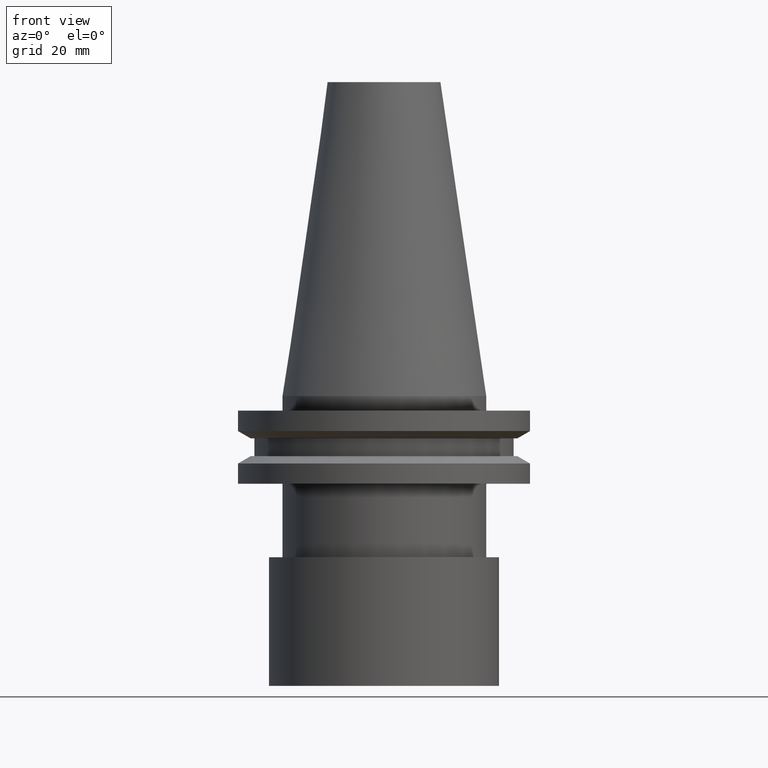
[diagram: clean part render]
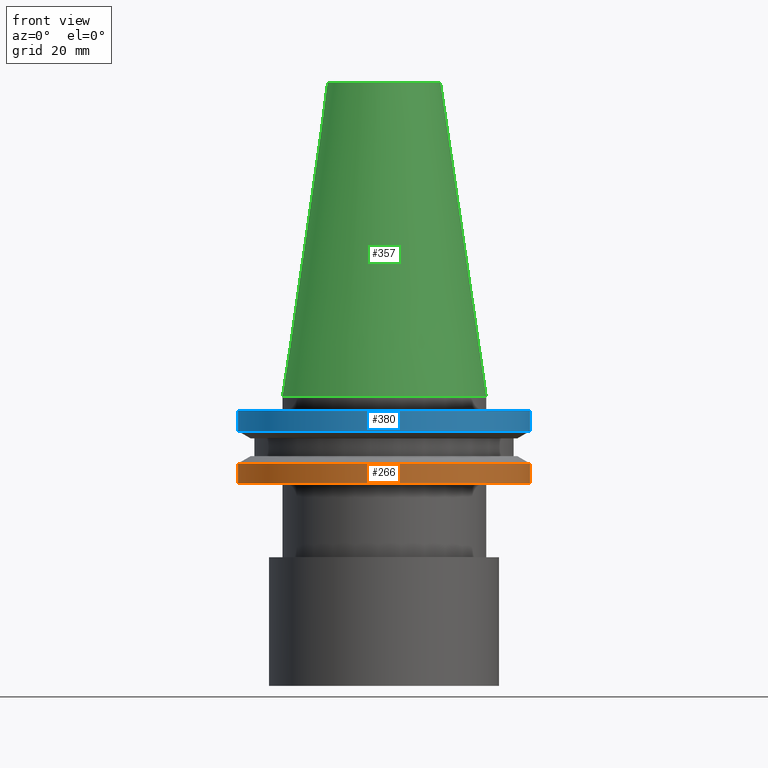
[diagram: same view with three faces highlighted in distinct colors, each labeled with its STEP entity id]
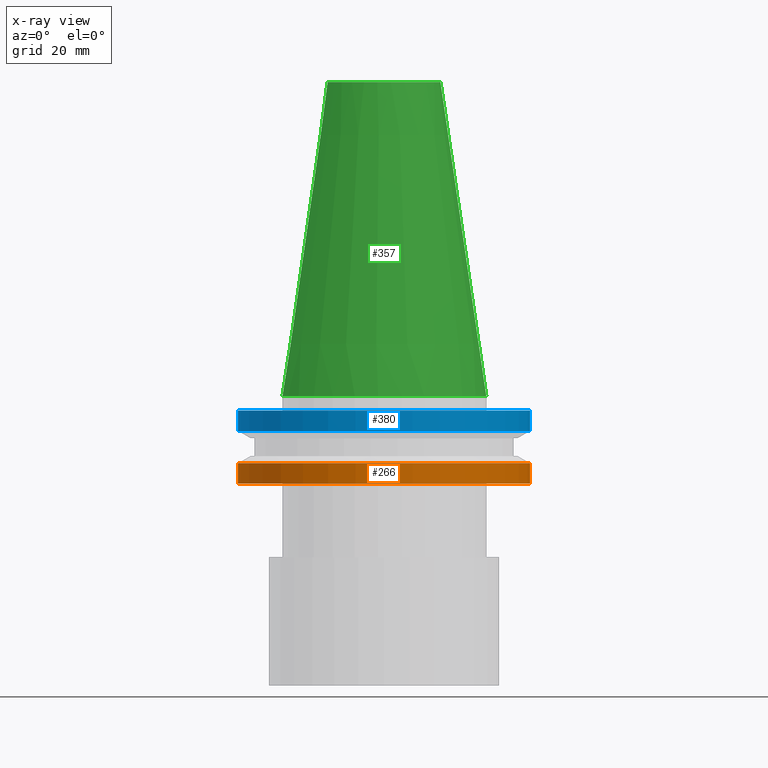
[diagram: x-ray of the same camera — body ghosted, the three highlighted faces saturated]
A machine part, front view with three faces highlighted in distinct colors.
The next image is the same camera in x-ray (body ghosted, the three faces saturated) — at least one of them is partly hidden behind the body in this view.
Their STEP definitions:

[orange] entity #266 — the highlighted cylindrical surface (bore or boss wall) has radius 31.75 mm, axis along (-0, -0, 1).
#38 = CARTESIAN_POINT ( 'NONE',  ( 0.000000000000000000, 0.000000000000000000, -19.04999999999999716 ) ) ;
#41 = VERTEX_POINT ( 'NONE', #379 ) ;
#62 = DIRECTION ( 'NONE',  ( 1.000000000000000000, 0.000000000000000000, 0.000000000000000000 ) ) ;
#71 = EDGE_CURVE ( 'NONE', #41, #41, #174, .T. ) ;
#99 = CYLINDRICAL_SURFACE ( 'NONE', #172, 31.75000000000000000 ) ;
#118 = EDGE_LOOP ( 'NONE', ( #359 ) ) ;
#134 = DIRECTION ( 'NONE',  ( 1.000000000000000000, 0.000000000000000000, 0.000000000000000000 ) ) ;
#163 = DIRECTION ( 'NONE',  ( -0.000000000000000000, -0.000000000000000000, 1.000000000000000000 ) ) ;
#172 = AXIS2_PLACEMENT_3D ( 'NONE', #245, #315, #134 ) ;
#174 = CIRCLE ( 'NONE', #333, 31.75000000000000000 ) ;
#178 = VERTEX_POINT ( 'NONE', #392 ) ;
#188 = FACE_OUTER_BOUND ( 'NONE', #391, .T. ) ;
#201 = ORIENTED_EDGE ( 'NONE', *, *, #71, .F. ) ;
#208 = AXIS2_PLACEMENT_3D ( 'NONE', #38, #163, #62 ) ;
#245 = CARTESIAN_POINT ( 'NONE',  ( 0.000000000000000000, 0.000000000000000000, 68.25000000000000000 ) ) ;
#247 = DIRECTION ( 'NONE',  ( 1.000000000000000000, 0.000000000000000000, 0.000000000000000000 ) ) ;
#266 = ADVANCED_FACE ( 'NONE', ( #188, #373 ), #99, .T. ) ;
#272 = EDGE_CURVE ( 'NONE', #178, #178, #367, .T. ) ;
#278 = CARTESIAN_POINT ( 'NONE',  ( 0.000000000000000000, 0.000000000000000000, -14.65472339340266572 ) ) ;
#315 = DIRECTION ( 'NONE',  ( -0.000000000000000000, -0.000000000000000000, 1.000000000000000000 ) ) ;
#333 = AXIS2_PLACEMENT_3D ( 'NONE', #278, #369, #247 ) ;
#359 = ORIENTED_EDGE ( 'NONE', *, *, #272, .T. ) ;
#367 = CIRCLE ( 'NONE', #208, 31.74999999999999289 ) ;
#369 = DIRECTION ( 'NONE',  ( -0.000000000000000000, -0.000000000000000000, 1.000000000000000000 ) ) ;
#373 = FACE_OUTER_BOUND ( 'NONE', #118, .T. ) ;
#379 = CARTESIAN_POINT ( 'NONE',  ( 31.75000000000000000, 0.000000000000000000, -14.65472339340266572 ) ) ;
#391 = EDGE_LOOP ( 'NONE', ( #201 ) ) ;
#392 = CARTESIAN_POINT ( 'NONE',  ( 31.74999999999999289, 0.000000000000000000, -19.04999999999999716 ) ) ;

[blue] entity #380 — the highlighted cylindrical surface (bore or boss wall) has radius 31.75 mm, axis along (-0, -0, 1).
#9 = CIRCLE ( 'NONE', #68, 31.75000000000000000 ) ;
#21 = EDGE_LOOP ( 'NONE', ( #121 ) ) ;
#45 = FACE_OUTER_BOUND ( 'NONE', #54, .T. ) ;
#46 = DIRECTION ( 'NONE',  ( 1.000000000000000000, 0.000000000000000000, 0.000000000000000000 ) ) ;
#54 = EDGE_LOOP ( 'NONE', ( #230 ) ) ;
#64 = DIRECTION ( 'NONE',  ( 1.000000000000000000, 0.000000000000000000, 0.000000000000000000 ) ) ;
#68 = AXIS2_PLACEMENT_3D ( 'NONE', #218, #336, #64 ) ;
#121 = ORIENTED_EDGE ( 'NONE', *, *, #236, .T. ) ;
#148 = EDGE_CURVE ( 'NONE', #196, #196, #349, .T. ) ;
#157 = DIRECTION ( 'NONE',  ( -0.000000000000000000, -0.000000000000000000, 1.000000000000000000 ) ) ;
#191 = CARTESIAN_POINT ( 'NONE',  ( 0.000000000000000000, 0.000000000000000000, 68.25000000000000000 ) ) ;
#196 = VERTEX_POINT ( 'NONE', #323 ) ;
#218 = CARTESIAN_POINT ( 'NONE',  ( 0.000000000000000000, 0.000000000000000000, -7.605276606597335842 ) ) ;
#227 = CYLINDRICAL_SURFACE ( 'NONE', #354, 31.75000000000000000 ) ;
#229 = DIRECTION ( 'NONE',  ( -0.000000000000000000, -0.000000000000000000, 1.000000000000000000 ) ) ;
#230 = ORIENTED_EDGE ( 'NONE', *, *, #148, .F. ) ;
#236 = EDGE_CURVE ( 'NONE', #388, #388, #9, .T. ) ;
#262 = FACE_OUTER_BOUND ( 'NONE', #21, .T. ) ;
#310 = CARTESIAN_POINT ( 'NONE',  ( 0.000000000000000000, 0.000000000000000000, -3.174999999999997158 ) ) ;
#323 = CARTESIAN_POINT ( 'NONE',  ( 31.75000000000000000, 0.000000000000000000, -3.174999999999997158 ) ) ;
#336 = DIRECTION ( 'NONE',  ( -0.000000000000000000, -0.000000000000000000, 1.000000000000000000 ) ) ;
#349 = CIRCLE ( 'NONE', #360, 31.75000000000000000 ) ;
#354 = AXIS2_PLACEMENT_3D ( 'NONE', #191, #229, #46 ) ;
#360 = AXIS2_PLACEMENT_3D ( 'NONE', #310, #157, #372 ) ;
#361 = CARTESIAN_POINT ( 'NONE',  ( 31.75000000000000000, 0.000000000000000000, -7.605276606597335842 ) ) ;
#372 = DIRECTION ( 'NONE',  ( 1.000000000000000000, 0.000000000000000000, 0.000000000000000000 ) ) ;
#380 = ADVANCED_FACE ( 'NONE', ( #45, #262 ), #227, .T. ) ;
#388 = VERTEX_POINT ( 'NONE', #361 ) ;

[green] entity #357 — the highlighted conical surface has half-angle 8.297 deg.
#7 = AXIS2_PLACEMENT_3D ( 'NONE', #377, #108, #67 ) ;
#67 = DIRECTION ( 'NONE',  ( -1.000000000000000000, 0.000000000000000000, 0.000000000000000000 ) ) ;
#70 = DIRECTION ( 'NONE',  ( -0.000000000000000000, -0.000000000000000000, 1.000000000000000000 ) ) ;
#79 = ORIENTED_EDGE ( 'NONE', *, *, #371, .T. ) ;
#102 = DIRECTION ( 'NONE',  ( 1.000000000000000000, 0.000000000000000000, 0.000000000000000000 ) ) ;
#108 = DIRECTION ( 'NONE',  ( 0.000000000000000000, 0.000000000000000000, -1.000000000000000000 ) ) ;
#112 = FACE_OUTER_BOUND ( 'NONE', #166, .T. ) ;
#151 = CARTESIAN_POINT ( 'NONE',  ( 22.22500000000000142, 0.000000000000000000, 0.000000000000000000 ) ) ;
#165 = DIRECTION ( 'NONE',  ( -0.000000000000000000, -0.000000000000000000, 1.000000000000000000 ) ) ;
#166 = EDGE_LOOP ( 'NONE', ( #79 ) ) ;
#189 = CARTESIAN_POINT ( 'NONE',  ( 0.000000000000000000, 0.000000000000000000, 68.25000000000000000 ) ) ;
#199 = VERTEX_POINT ( 'NONE', #299 ) ;
#220 = AXIS2_PLACEMENT_3D ( 'NONE', #189, #70, #102 ) ;
#223 = CARTESIAN_POINT ( 'NONE',  ( 0.000000000000000000, 0.000000000000000000, 0.000000000000000000 ) ) ;
#225 = DIRECTION ( 'NONE',  ( 1.000000000000000000, 0.000000000000000000, 0.000000000000000000 ) ) ;
#233 = VERTEX_POINT ( 'NONE', #151 ) ;
#234 = EDGE_LOOP ( 'NONE', ( #387 ) ) ;
#248 = CIRCLE ( 'NONE', #220, 12.27178102086201150 ) ;
#261 = FACE_BOUND ( 'NONE', #234, .T. ) ;
#276 = CONICAL_SURFACE ( 'NONE', #7, 22.22500000000000142, 0.1448138465474119174 ) ;
#299 = CARTESIAN_POINT ( 'NONE',  ( 12.27178102086201150, 0.000000000000000000, 68.25000000000000000 ) ) ;
#308 = CIRCLE ( 'NONE', #386, 22.22500000000000142 ) ;
#351 = EDGE_CURVE ( 'NONE', #199, #199, #248, .T. ) ;
#357 = ADVANCED_FACE ( 'NONE', ( #261, #112 ), #276, .T. ) ;
#371 = EDGE_CURVE ( 'NONE', #233, #233, #308, .T. ) ;
#377 = CARTESIAN_POINT ( 'NONE',  ( 0.000000000000000000, 0.000000000000000000, 0.000000000000000000 ) ) ;
#386 = AXIS2_PLACEMENT_3D ( 'NONE', #223, #165, #225 ) ;
#387 = ORIENTED_EDGE ( 'NONE', *, *, #351, .F. ) ;